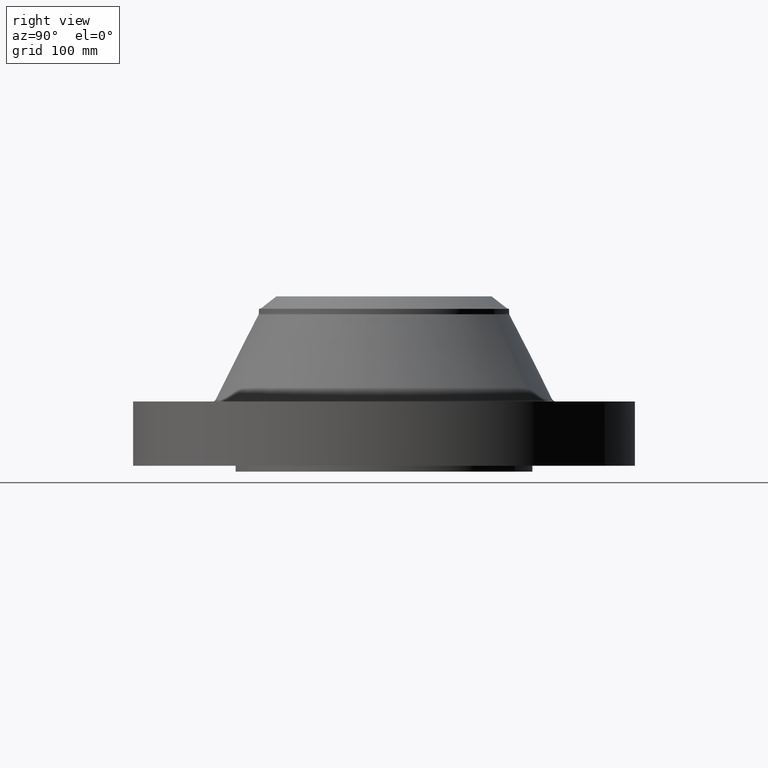
[diagram: clean part render]
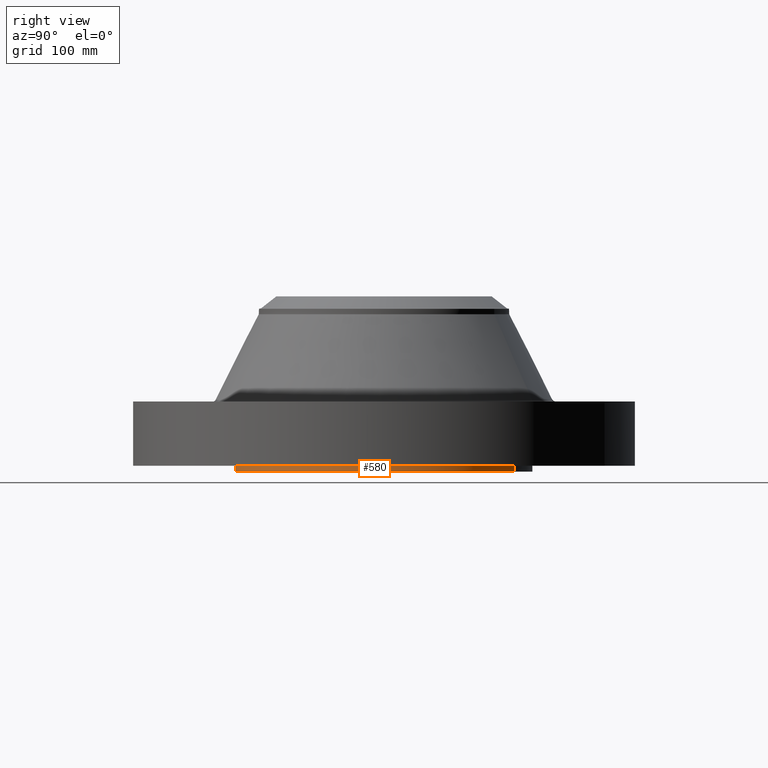
[diagram: same view with one face highlighted and labeled with its STEP entity id]
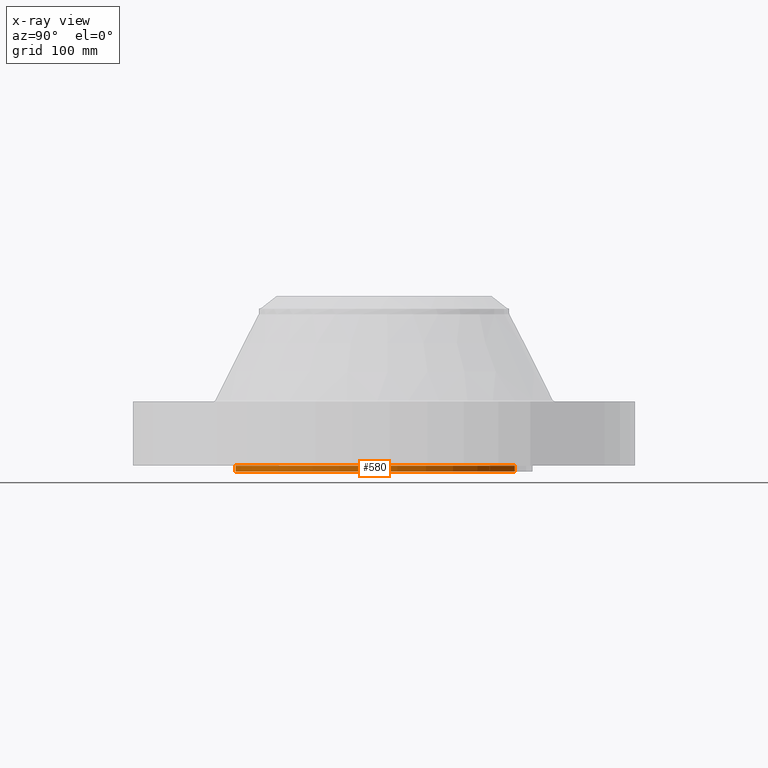
[diagram: x-ray of the same camera — body ghosted, the highlighted face saturated]
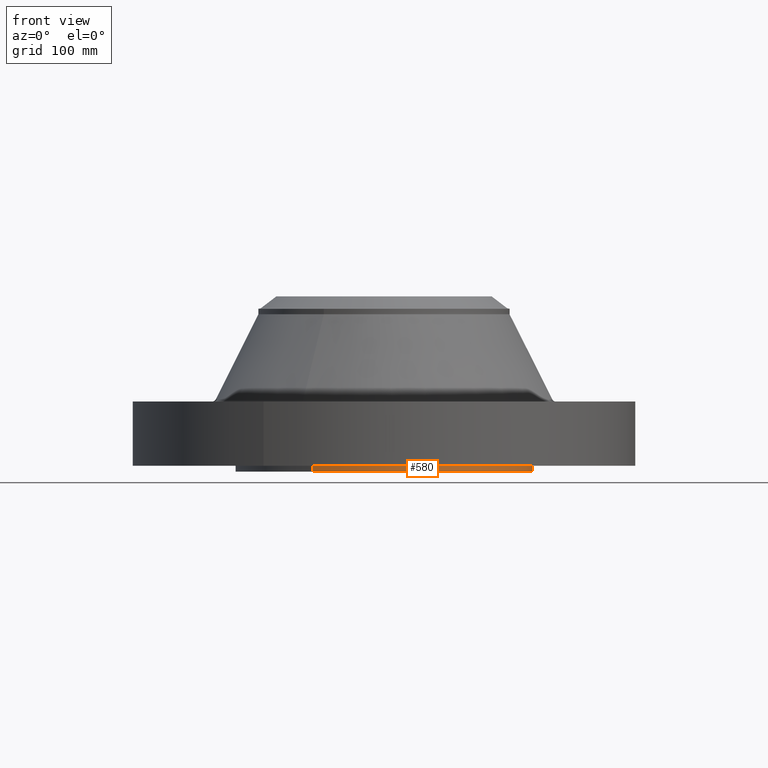
[diagram: same view with one face highlighted and labeled with its STEP entity id]
A machine part, right view. The second image highlights one B-rep face of the part: STEP entity #580.
The next image is the same camera in x-ray: the body ghosted, the highlighted face saturated — about 0% of this face is hidden behind the body in this view.
A second angle (front view) of the same face is appended — the face is thin or edge-on in the first view.
In plain terms, the highlighted cylindrical surface (partial cylindrical patch) has radius 161.925 mm, axis along (0, 0, -1).
Its self-contained STEP definition (entity closure, byte-faithful):
#511=AXIS2_PLACEMENT_3D('Circle Axis2P3D',#509,#510,$) ;
#541=AXIS2_PLACEMENT_3D('Cylinder Axis2P3D',#538,#539,#540) ;
#571=AXIS2_PLACEMENT_3D('Circle Axis2P3D',#569,#570,$) ;
#504=CARTESIAN_POINT('Vertex',(-3.05633780861,-5.59458883207,-0.250000000001)) ;
#506=CARTESIAN_POINT('Vertex',(3.05633780861,5.59458883207,-0.250000000001)) ;
#509=CARTESIAN_POINT('Axis2P3D Location',(0.,0.,-0.250000000001)) ;
#538=CARTESIAN_POINT('Axis2P3D Location',(0.,0.,3.50000000001)) ;
#543=CARTESIAN_POINT('Line Origine',(-3.05633780861,-5.59458883207,-0.125)) ;
#547=CARTESIAN_POINT('Vertex',(-3.05633780861,-5.59458883207,5.59482469102E-016)) ;
#554=CARTESIAN_POINT('Vertex',(3.05633780861,5.59458883207,5.59482469102E-016)) ;
#557=CARTESIAN_POINT('Line Origine',(3.05633780861,5.59458883207,-0.125)) ;
#569=CARTESIAN_POINT('Axis2P3D Location',(0.,0.,5.59482469102E-016)) ;
#510=DIRECTION('Axis2P3D Direction',(0.,0.,-0.0393700787402)) ;
#539=DIRECTION('Axis2P3D Direction',(0.,0.,-0.0393700787402)) ;
#540=DIRECTION('Axis2P3D XDirection',(0.0188750212049,0.0345504945626,0.)) ;
#544=DIRECTION('Vector Direction',(0.,0.,-0.0393700787402)) ;
#558=DIRECTION('Vector Direction',(0.,0.,-0.0393700787402)) ;
#570=DIRECTION('Axis2P3D Direction',(0.,0.,-0.0393700787402)) ;
#545=VECTOR('Line Direction',#544,0.0393700787402) ;
#559=VECTOR('Line Direction',#558,0.0393700787402) ;
#575=ORIENTED_EDGE('',*,*,#513,.F.) ;
#576=ORIENTED_EDGE('',*,*,#561,.T.) ;
#577=ORIENTED_EDGE('',*,*,#573,.T.) ;
#578=ORIENTED_EDGE('',*,*,#549,.F.) ;
#580=ADVANCED_FACE('PartBody',(#579),#542,.T.) ;
#512=CIRCLE('generated circle',#511,6.37500000003) ;
#572=CIRCLE('generated circle',#571,6.37500000003) ;
#542=CYLINDRICAL_SURFACE('generated cylinder',#541,6.37500000003) ;
#513=EDGE_CURVE('',#507,#505,#512,.T.) ;
#549=EDGE_CURVE('',#505,#548,#546,.F.) ;
#561=EDGE_CURVE('',#507,#555,#560,.F.) ;
#573=EDGE_CURVE('',#555,#548,#572,.T.) ;
#574=EDGE_LOOP('',(#575,#576,#577,#578)) ;
#579=FACE_OUTER_BOUND('',#574,.T.) ;
#546=LINE('Line',#543,#545) ;
#560=LINE('Line',#557,#559) ;
#505=VERTEX_POINT('',#504) ;
#507=VERTEX_POINT('',#506) ;
#548=VERTEX_POINT('',#547) ;
#555=VERTEX_POINT('',#554) ;